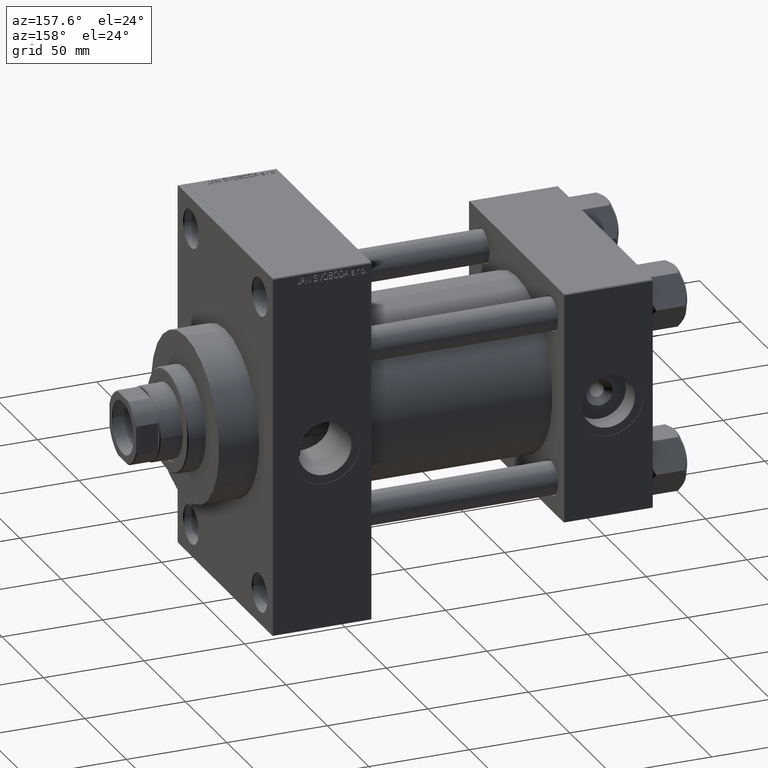
[diagram: clean part render]
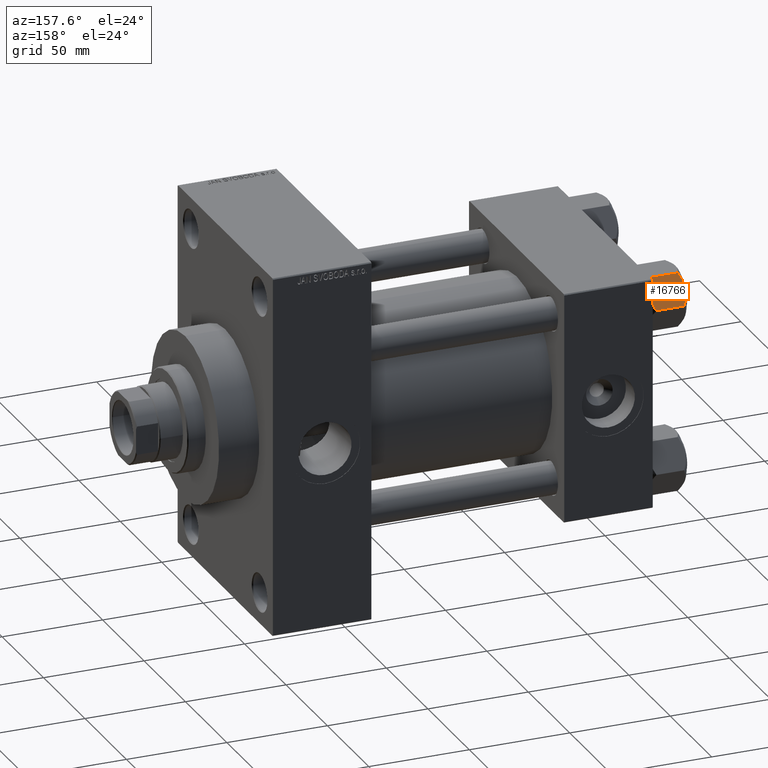
[diagram: same view with one face highlighted and labeled with its STEP entity id]
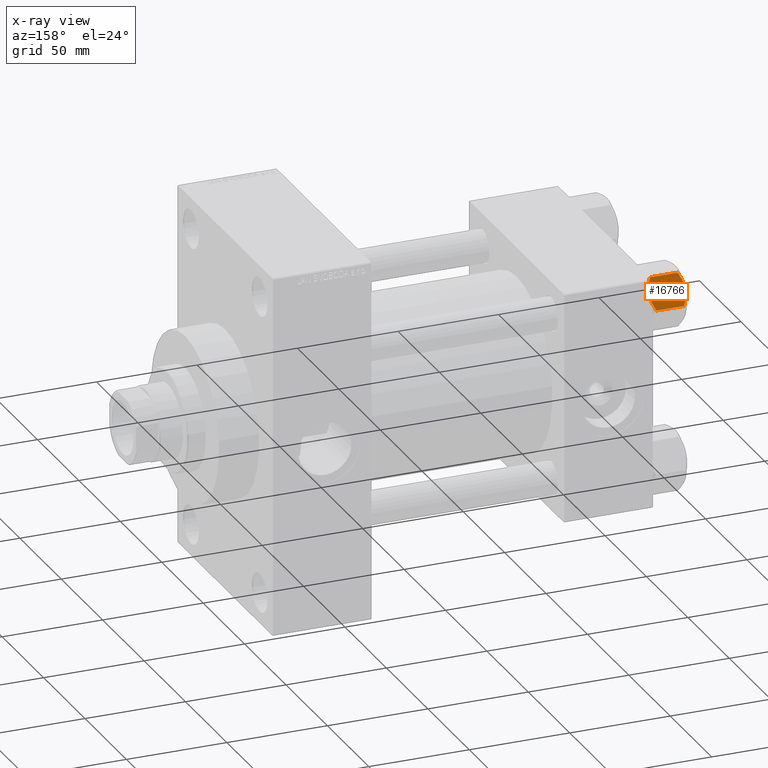
[diagram: x-ray of the same camera — body ghosted, the highlighted face saturated]
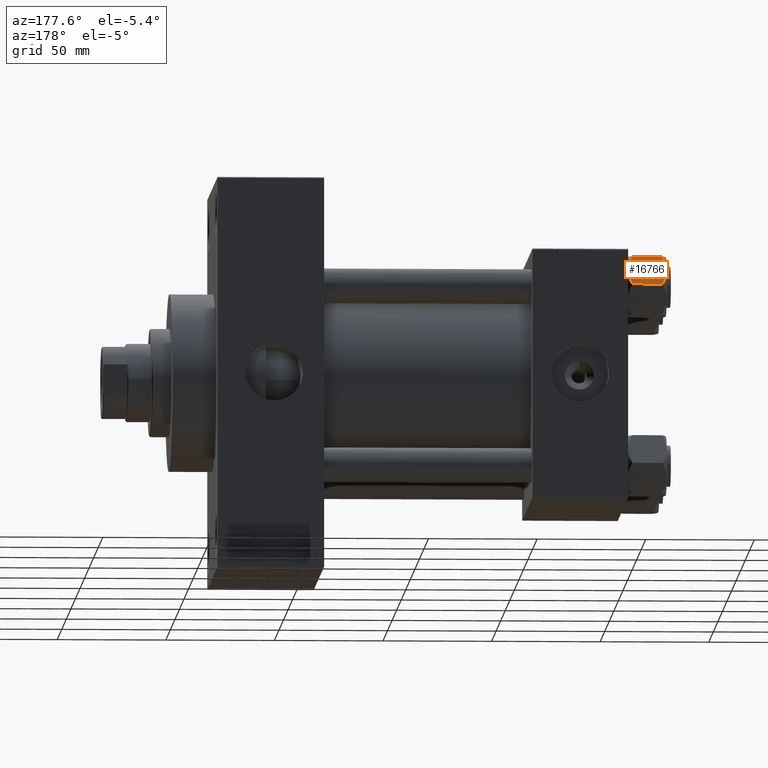
[diagram: same view with one face highlighted and labeled with its STEP entity id]
A machine part, auxiliary view. The second image highlights one B-rep face of the part: STEP entity #16766.
The next image is the same camera in x-ray: the body ghosted, the highlighted face saturated — about 0% of this face is hidden behind the body in this view.
A second angle (auxiliary view) of the same face is appended — the face is thin or edge-on in the first view.
In plain terms, the highlighted planar face has unit normal (0, -0.866, -0.5).
Its self-contained STEP definition (entity closure, byte-faithful):
#397 = CARTESIAN_POINT ( 'NONE',  ( 15.62000000000000455, -1.379485931020374819E-15, -16.00000000000000000 ) ) ;
#590 = CARTESIAN_POINT ( 'NONE',  ( 15.62000000000000455, -1.379485931020374819E-15, -1.999999999999998224 ) ) ;
#648 = ORIENTED_EDGE ( 'NONE', *, *, #46496, .F. ) ;
#867 = CARTESIAN_POINT ( 'NONE',  ( 13.02784502466562699, -4.489744118371590709, -0.1971866459924545845 ) ) ;
#1051 = LINE ( 'NONE', #590, #27332 ) ;
#2107 = CARTESIAN_POINT ( 'NONE',  ( 11.71500000000000341, -6.763658403556471299, -18.00000000000000000 ) ) ;
#2514 = EDGE_CURVE ( 'NONE', #30011, #29469, #1051, .T. ) ;
#2529 = VECTOR ( 'NONE', #34428, 1000.000000000000114 ) ;
#2600 = CARTESIAN_POINT ( 'NONE',  ( 15.52647173767732980, -0.1619957022865074481, -16.00000000000000000 ) ) ;
#2845 = CARTESIAN_POINT ( 'NONE',  ( 13.36540581434587516, -3.905071680002325962, -17.61639331488793303 ) ) ;
#4640 = DIRECTION ( 'NONE',  ( -0.000000000000000000, -0.000000000000000000, 1.000000000000000000 ) ) ;
#4915 = CARTESIAN_POINT ( 'NONE',  ( 10.38662926516871998, -9.064464007571853443, -0.2430846701012968625 ) ) ;
#5360 = VERTEX_POINT ( 'NONE', #18125 ) ;
#6620 = ORIENTED_EDGE ( 'NONE', *, *, #20514, .F. ) ;
#6691 = CARTESIAN_POINT ( 'NONE',  ( 12.04818928091285279, -6.186557640478066666, -17.99999999999999645 ) ) ;
#6881 = AXIS2_PLACEMENT_3D ( 'NONE', #22869, #19964, #42162 ) ;
#7106 = CARTESIAN_POINT ( 'NONE',  ( 7.903528262322674358, -13.36532110482643176, -16.00000000000000000 ) ) ;
#7410 = VERTEX_POINT ( 'NONE', #18146 ) ;
#7857 = CARTESIAN_POINT ( 'NONE',  ( 15.52647173767732980, -0.1619957022865074481, -2.000000000000000000 ) ) ;
#7934 = ORIENTED_EDGE ( 'NONE', *, *, #19302, .F. ) ;
#8176 = VECTOR ( 'NONE', #26389, 1000.000000000000114 ) ;
#8761 = CARTESIAN_POINT ( 'NONE',  ( 9.114548888011784200, -11.26777185211904353, -0.9142282604026938930 ) ) ;
#9193 = EDGE_CURVE ( 'NONE', #23659, #26573, #12424, .T. ) ;
#9235 = CARTESIAN_POINT ( 'NONE',  ( 11.04378428799594936, -7.926238119586006547, -0.05089381635301404999 ) ) ;
#10779 = CARTESIAN_POINT ( 'NONE',  ( 11.71500000000000341, -6.763658403556471299, -18.00000000000000000 ) ) ;
#11736 = CARTESIAN_POINT ( 'NONE',  ( 7.810000000000002274, -13.52731680711293372, -18.00000000000000000 ) ) ;
#12145 = CARTESIAN_POINT ( 'NONE',  ( 8.502393313253756801, -12.32805640973649197, -1.411989271640069044 ) ) ;
#12424 = LINE ( 'NONE', #11736, #26803 ) ;
#15306 = CARTESIAN_POINT ( 'NONE',  ( 7.903528262322674358, -13.36532110482643176, -2.000000000000000000 ) ) ;
#15337 = ORIENTED_EDGE ( 'NONE', *, *, #39478, .F. ) ;
#15632 = CARTESIAN_POINT ( 'NONE',  ( 15.62000000000000455, -1.379485931020374819E-15, -16.00000000000000000 ) ) ;
#15792 = CARTESIAN_POINT ( 'NONE',  ( 15.22736220980736022, -0.6800686015852294153, -1.706311779141445495 ) ) ;
#16596 = CARTESIAN_POINT ( 'NONE',  ( 7.903528262322674358, -13.36532110482643176, -16.00000000000000000 ) ) ;
#16766 = ADVANCED_FACE ( 'NONE', ( #44844 ), #30360, .F. ) ;
#18022 = ORIENTED_EDGE ( 'NONE', *, *, #36742, .F. ) ;
#18125 = CARTESIAN_POINT ( 'NONE',  ( 7.903528262322674358, -13.36532110482643176, -2.000000000000000000 ) ) ;
#18146 = CARTESIAN_POINT ( 'NONE',  ( 11.71500000000000341, -6.763658403556471299, 0.000000000000000000 ) ) ;
#18627 = LINE ( 'NONE', #22937, #44088 ) ;
#19302 = EDGE_CURVE ( 'NONE', #45281, #27205, #20147, .T. ) ;
#19430 = DIRECTION ( 'NONE',  ( -0.000000000000000000, -0.000000000000000000, 1.000000000000000000 ) ) ;
#19515 = VECTOR ( 'NONE', #40846, 1000.000000000000114 ) ;
#19709 = VERTEX_POINT ( 'NONE', #7106 ) ;
#19872 = CARTESIAN_POINT ( 'NONE',  ( 14.30591678195076355, -2.276058899034900662, -0.9473872146228133895 ) ) ;
#19964 = DIRECTION ( 'NONE',  ( -0.8660254037844385966, 0.5000000000000003331, 0.000000000000000000 ) ) ;
#20147 = B_SPLINE_CURVE_WITH_KNOTS ( 'NONE', 3,
 ( #2600, #28868, #32245, #2845, #25460, #25224, #6691, #10779 ),
 .UNSPECIFIED., .F., .F.,
 ( 4, 2, 2, 4 ),
 ( 4.472842641901889415E-07, 0.003945636373369311792, 0.005918230917921871344, 0.007890825462474430896 ),
 .UNSPECIFIED. ) ;
#20514 = EDGE_CURVE ( 'NONE', #5360, #7410, #47667, .T. ) ;
#22480 = CARTESIAN_POINT ( 'NONE',  ( 7.810000000000002274, -13.52731680711293372, -16.00000000000000000 ) ) ;
#22869 = CARTESIAN_POINT ( 'NONE',  ( 15.62000000000000455, -1.379485931020374819E-15, -18.00000000000000000 ) ) ;
#22937 = CARTESIAN_POINT ( 'NONE',  ( 15.62000000000000455, -1.379485931020374819E-15, -18.00000000000000000 ) ) ;
#22955 = LINE ( 'NONE', #26103, #19515 ) ;
#22959 = DIRECTION ( 'NONE',  ( 0.5000000000000002220, 0.8660254037844384856, -0.000000000000000000 ) ) ;
#23005 = CARTESIAN_POINT ( 'NONE',  ( 13.99051971937274352, -2.822342635978011938, -0.7317196846281139866 ) ) ;
#23447 = CARTESIAN_POINT ( 'NONE',  ( 11.71500000000000341, -6.763658403556471299, 0.000000000000000000 ) ) ;
#23529 = B_SPLINE_CURVE_WITH_KNOTS ( 'NONE', 3,
 ( #33886, #45217, #867, #23005, #19872, #37738, #15792, #7857 ),
 .UNSPECIFIED., .F., .F.,
 ( 4, 2, 2, 4 ),
 ( 0.007890825462474425692, 0.01181022244528553977, 0.01376992093669109768, 0.01572961942809665559 ),
 .UNSPECIFIED. ) ;
#23659 = VERTEX_POINT ( 'NONE', #22480 ) ;
#23904 = VERTEX_POINT ( 'NONE', #34755 ) ;
#24045 = CARTESIAN_POINT ( 'NONE',  ( 9.124083218049241495, -11.25125790807804016, -17.05261278537718539 ) ) ;
#25224 = CARTESIAN_POINT ( 'NONE',  ( 12.38621571200405569, -5.601078687526932498, -17.94910618364698252 ) ) ;
#25460 = CARTESIAN_POINT ( 'NONE',  ( 13.04337073483127973, -4.462852799541088267, -17.75691532989870325 ) ) ;
#25461 = ORIENTED_EDGE ( 'NONE', *, *, #37673, .F. ) ;
#26103 = CARTESIAN_POINT ( 'NONE',  ( 15.62000000000000455, -1.379485931020374819E-15, -1.999999999999998224 ) ) ;
#26153 = CARTESIAN_POINT ( 'NONE',  ( 15.52647173767732980, -0.1619957022865074481, -2.000000000000000000 ) ) ;
#26389 = DIRECTION ( 'NONE',  ( -0.5000000000000002220, -0.8660254037844384856, 0.000000000000000000 ) ) ;
#26573 = VERTEX_POINT ( 'NONE', #43195 ) ;
#26803 = VECTOR ( 'NONE', #19430, 1000.000000000000000 ) ;
#27063 = CARTESIAN_POINT ( 'NONE',  ( 10.06459418565412456, -9.622245127110611307, -0.3836066851120584209 ) ) ;
#27205 = VERTEX_POINT ( 'NONE', #2107 ) ;
#27332 = VECTOR ( 'NONE', #22959, 1000.000000000000114 ) ;
#27664 = CARTESIAN_POINT ( 'NONE',  ( 11.71500000000000341, -6.763658403556471299, -18.00000000000000000 ) ) ;
#27814 = ORIENTED_EDGE ( 'NONE', *, *, #31278, .F. ) ;
#28155 = CARTESIAN_POINT ( 'NONE',  ( 10.40215497533437450, -9.037572688741349225, -17.80281335400754372 ) ) ;
#28382 = ORIENTED_EDGE ( 'NONE', *, *, #41134, .T. ) ;
#28868 = CARTESIAN_POINT ( 'NONE',  ( 14.92760668674625535, -1.199260397376455067, -16.58801072835992585 ) ) ;
#29469 = VERTEX_POINT ( 'NONE', #33093 ) ;
#29684 = ORIENTED_EDGE ( 'NONE', *, *, #9193, .F. ) ;
#30011 = VERTEX_POINT ( 'NONE', #26153 ) ;
#30360 = PLANE ( 'NONE',  #6881 ) ;
#31278 = EDGE_CURVE ( 'NONE', #26573, #5360, #22955, .T. ) ;
#31328 = CARTESIAN_POINT ( 'NONE',  ( 15.52647173767732980, -0.1619957022865074481, -16.00000000000000000 ) ) ;
#31772 = CARTESIAN_POINT ( 'NONE',  ( 11.05297796109637964, -7.910314210667883650, -18.00000000000000000 ) ) ;
#32016 = CARTESIAN_POINT ( 'NONE',  ( 8.202637790192644829, -12.84724820552770908, -16.29368822085855228 ) ) ;
#32055 = B_SPLINE_CURVE_WITH_KNOTS ( 'NONE', 3,
 ( #27664, #31772, #28155, #42883, #24045, #39267, #32016, #16596 ),
 .UNSPECIFIED., .F., .F.,
 ( 4, 2, 2, 4 ),
 ( 0.007890825462474430896, 0.01181022244528554324, 0.01376992093669110115, 0.01572961942809665906 ),
 .UNSPECIFIED. ) ;
#32245 = CARTESIAN_POINT ( 'NONE',  ( 14.31545111198821729, -2.259544954993898624, -17.08577173959729834 ) ) ;
#33093 = CARTESIAN_POINT ( 'NONE',  ( 15.62000000000000455, -1.379485931020374819E-15, -1.999999999999998224 ) ) ;
#33886 = CARTESIAN_POINT ( 'NONE',  ( 11.71500000000000341, -6.763658403556471299, 0.000000000000000000 ) ) ;
#34428 = DIRECTION ( 'NONE',  ( -0.5000000000000002220, -0.8660254037844384856, 0.000000000000000000 ) ) ;
#34755 = CARTESIAN_POINT ( 'NONE',  ( 15.62000000000000455, -1.379485931020374819E-15, -16.00000000000000000 ) ) ;
#36742 = EDGE_CURVE ( 'NONE', #19709, #23659, #44517, .T. ) ;
#36805 = EDGE_LOOP ( 'NONE', ( #648, #28382, #40502, #25461, #6620, #27814, #29684, #18022, #15337, #7934 ) ) ;
#37673 = EDGE_CURVE ( 'NONE', #7410, #30011, #23529, .T. ) ;
#37738 = CARTESIAN_POINT ( 'NONE',  ( 14.92394044919338292, -1.205610507090636219, -1.434462921875003349 ) ) ;
#39267 = CARTESIAN_POINT ( 'NONE',  ( 8.506059550806615022, -12.32170630002230638, -16.56553707812499709 ) ) ;
#39478 = EDGE_CURVE ( 'NONE', #27205, #19709, #32055, .T. ) ;
#40502 = ORIENTED_EDGE ( 'NONE', *, *, #2514, .F. ) ;
#40846 = DIRECTION ( 'NONE',  ( 0.5000000000000002220, 0.8660254037844384856, -0.000000000000000000 ) ) ;
#41134 = EDGE_CURVE ( 'NONE', #23904, #29469, #18627, .T. ) ;
#41802 = CARTESIAN_POINT ( 'NONE',  ( 11.38181071908714515, -7.340759166634874155, 7.741881137904304113E-16 ) ) ;
#42162 = DIRECTION ( 'NONE',  ( -0.5000000000000002220, -0.8660254037844384856, 0.000000000000000000 ) ) ;
#42883 = CARTESIAN_POINT ( 'NONE',  ( 9.439480280627259745, -10.70497417113492666, -17.26828031537187869 ) ) ;
#43195 = CARTESIAN_POINT ( 'NONE',  ( 7.810000000000002274, -13.52731680711293372, -1.999999999999998224 ) ) ;
#44088 = VECTOR ( 'NONE', #4640, 1000.000000000000000 ) ;
#44517 = LINE ( 'NONE', #397, #8176 ) ;
#44844 = FACE_OUTER_BOUND ( 'NONE', #36805, .T. ) ;
#45217 = CARTESIAN_POINT ( 'NONE',  ( 12.37702203890362540, -5.617002596445055396, 1.097754699641572845E-15 ) ) ;
#45281 = VERTEX_POINT ( 'NONE', #31328 ) ;
#45289 = LINE ( 'NONE', #15632, #2529 ) ;
#46496 = EDGE_CURVE ( 'NONE', #23904, #45281, #45289, .T. ) ;
#47667 = B_SPLINE_CURVE_WITH_KNOTS ( 'NONE', 3,
 ( #15306, #12145, #8761, #27063, #4915, #9235, #41802, #23447 ),
 .UNSPECIFIED., .F., .F.,
 ( 4, 2, 2, 4 ),
 ( 4.472842641876105202E-07, 0.003945636373369308322, 0.005918230917921867007, 0.007890825462474425692 ),
 .UNSPECIFIED. ) ;